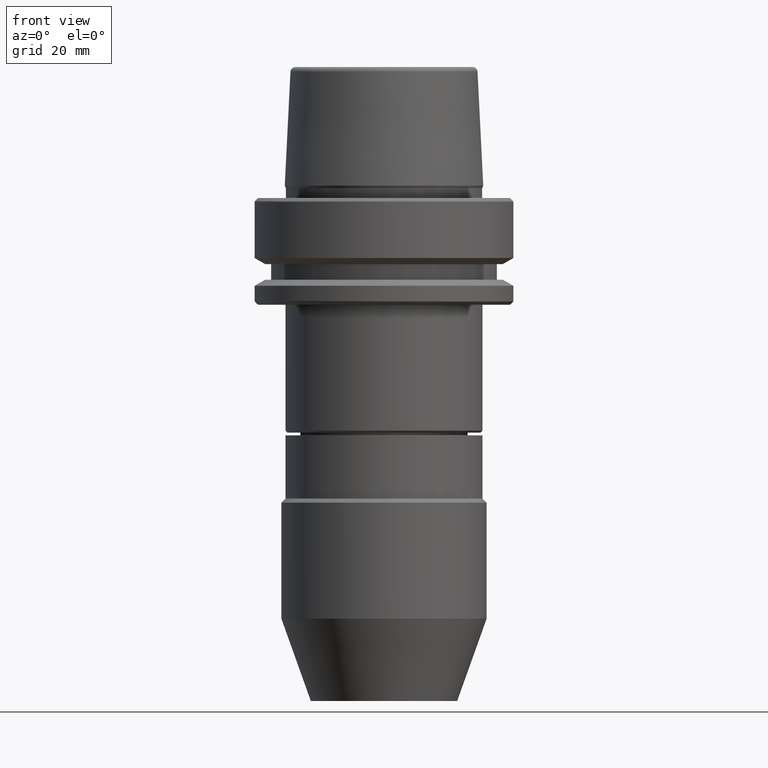
[diagram: clean part render]
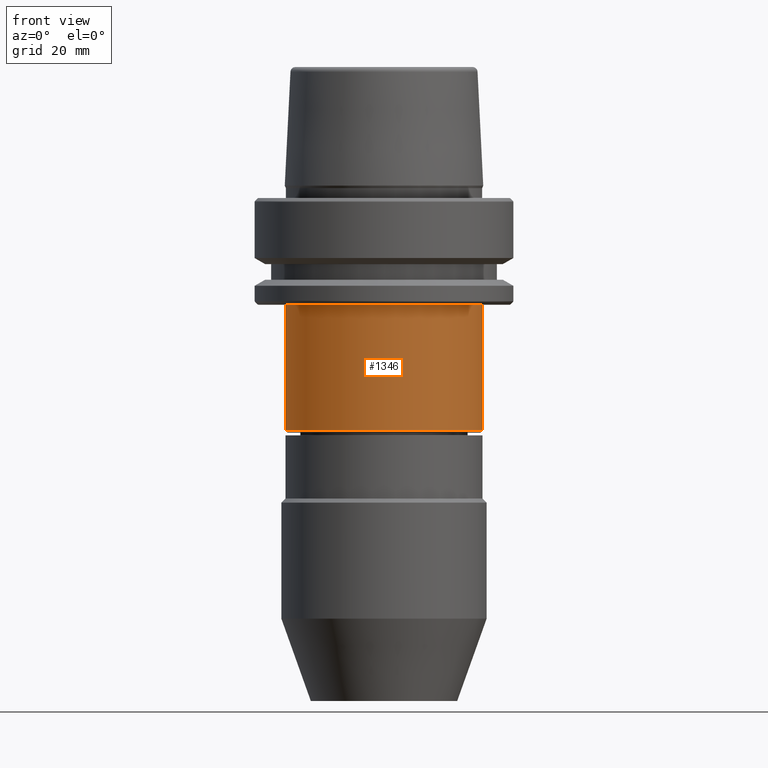
[diagram: same view with one face highlighted and labeled with its STEP entity id]
A machine part, front view. The second image highlights one B-rep face of the part: STEP entity #1346.
In plain terms, the highlighted cylindrical surface (partial cylindrical patch) has radius 24 mm, axis along (-0, -0, 1).
Its self-contained STEP definition (entity closure, byte-faithful):
#4 = FACE_OUTER_BOUND ( 'NONE', #1331, .T. ) ;
#80 = AXIS2_PLACEMENT_3D ( 'NONE', #482, #1283, #601 ) ;
#86 = DIRECTION ( 'NONE',  ( -0.0000000000000000000, -0.0000000000000000000, 1.000000000000000000 ) ) ;
#108 = EDGE_CURVE ( 'NONE', #893, #167, #820, .T. ) ;
#142 = DIRECTION ( 'NONE',  ( 1.000000000000000000, 0.0000000000000000000, 0.0000000000000000000 ) ) ;
#167 = VERTEX_POINT ( 'NONE', #1002 ) ;
#192 = ORIENTED_EDGE ( 'NONE', *, *, #1102, .T. ) ;
#205 = CARTESIAN_POINT ( 'NONE',  ( 0.0000000000000000000, 0.0000000000000000000, -26.00000000000001100 ) ) ;
#266 = AXIS2_PLACEMENT_3D ( 'NONE', #205, #782, #561 ) ;
#279 = LINE ( 'NONE', #298, #458 ) ;
#285 = EDGE_CURVE ( 'NONE', #1513, #893, #279, .T. ) ;
#298 = CARTESIAN_POINT ( 'NONE',  ( -23.99999999999998600, 2.939152317953646300E-015, 31.31059451800105700 ) ) ;
#458 = VECTOR ( 'NONE', #1386, 1000.000000000000000 ) ;
#482 = CARTESIAN_POINT ( 'NONE',  ( 0.0000000000000000000, 0.0000000000000000000, -56.65000000000011900 ) ) ;
#512 = CYLINDRICAL_SURFACE ( 'NONE', #1294, 23.99999999999998600 ) ;
#561 = DIRECTION ( 'NONE',  ( 1.000000000000000000, 0.0000000000000000000, 0.0000000000000000000 ) ) ;
#589 = VERTEX_POINT ( 'NONE', #921 ) ;
#590 = CIRCLE ( 'NONE', #80, 23.99999999999997200 ) ;
#601 = DIRECTION ( 'NONE',  ( 1.000000000000000000, 0.0000000000000000000, 0.0000000000000000000 ) ) ;
#617 = CARTESIAN_POINT ( 'NONE',  ( -24.00000000000000400, 2.939152317953648300E-015, -26.00000000000001100 ) ) ;
#618 = EDGE_CURVE ( 'NONE', #589, #167, #896, .T. ) ;
#690 = CARTESIAN_POINT ( 'NONE',  ( 23.99999999999998600, 0.0000000000000000000, 31.31059451800105700 ) ) ;
#782 = DIRECTION ( 'NONE',  ( -0.0000000000000000000, -0.0000000000000000000, 1.000000000000000000 ) ) ;
#814 = ORIENTED_EDGE ( 'NONE', *, *, #285, .F. ) ;
#820 = CIRCLE ( 'NONE', #266, 24.00000000000000000 ) ;
#893 = VERTEX_POINT ( 'NONE', #617 ) ;
#896 = LINE ( 'NONE', #690, #1065 ) ;
#921 = CARTESIAN_POINT ( 'NONE',  ( 23.99999999999997200, 0.0000000000000000000, -56.65000000000011900 ) ) ;
#954 = CARTESIAN_POINT ( 'NONE',  ( 0.0000000000000000000, 0.0000000000000000000, 31.31059451800105700 ) ) ;
#1002 = CARTESIAN_POINT ( 'NONE',  ( 24.00000000000000000, 0.0000000000000000000, -26.00000000000001100 ) ) ;
#1005 = ORIENTED_EDGE ( 'NONE', *, *, #618, .T. ) ;
#1065 = VECTOR ( 'NONE', #86, 1000.000000000000000 ) ;
#1073 = DIRECTION ( 'NONE',  ( -0.0000000000000000000, -0.0000000000000000000, 1.000000000000000000 ) ) ;
#1074 = ORIENTED_EDGE ( 'NONE', *, *, #108, .F. ) ;
#1102 = EDGE_CURVE ( 'NONE', #1513, #589, #590, .T. ) ;
#1283 = DIRECTION ( 'NONE',  ( -0.0000000000000000000, -0.0000000000000000000, 1.000000000000000000 ) ) ;
#1294 = AXIS2_PLACEMENT_3D ( 'NONE', #954, #1073, #142 ) ;
#1331 = EDGE_LOOP ( 'NONE', ( #814, #192, #1005, #1074 ) ) ;
#1339 = CARTESIAN_POINT ( 'NONE',  ( -23.99999999999997200, 2.939152317953644300E-015, -56.65000000000011900 ) ) ;
#1346 = ADVANCED_FACE ( 'NONE', ( #4 ), #512, .T. ) ;
#1386 = DIRECTION ( 'NONE',  ( -0.0000000000000000000, -0.0000000000000000000, 1.000000000000000000 ) ) ;
#1513 = VERTEX_POINT ( 'NONE', #1339 ) ;